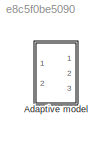
MODEL slx_e8c5f0be5090
KIND model
CONFIG AbsTol = auto
CONFIG FixedStep = auto
CONFIG MaxStep = auto
CONFIG MinStep = auto
CONFIG RelTol = 1e-3
CONFIG SampleTimeConstraint = Unconstrained
CONFIG Solver = VariableStepAuto
CONFIG SolverMode = SingleTasking
CONFIG SolverName = VariableStepAuto
CONFIG StartTime = 0.0
CONFIG StopTime = 10.0
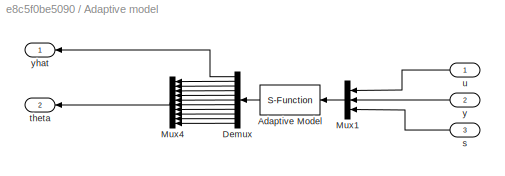
BLOCK [SubSystem] Adaptive model
  Ports = [3, 2]
  RequestExecContextInheritance = off
  Variant = off
BLOCK [S-Function] Adaptive model/Adaptive Model 
  EnableBusSupport = off
  FunctionName = aap
  Parameters = nA,nB,d
  Ports = [1, 1]
  SFunctionDeploymentMode = off
BLOCK [Demux] Adaptive model/Demux
  DisplayOption = bar
  Outputs = 11
  Ports = [1, 11]
BLOCK [Mux] Adaptive model/Mux1
  DisplayOption = bar
  Inputs = 3
  Ports = [3, 1]
BLOCK [Mux] Adaptive model/Mux4
  DisplayOption = bar
  Inputs = 10
  Ports = [10, 1]
BLOCK [Inport] Adaptive model/s
  IconDisplay = Port number
  Port = 3
BLOCK [Outport] Adaptive model/theta
  IconDisplay = Port number
  Port = 2
BLOCK [Inport] Adaptive model/u
  IconDisplay = Port number
BLOCK [Inport] Adaptive model/y
  IconDisplay = Port number
  Port = 2
BLOCK [Outport] Adaptive model/yhat
  IconDisplay = Port number
LINE Adaptive model/Adaptive Model :1 -> Adaptive model/Demux:1
LINE Adaptive model/Demux:1 -> Adaptive model/yhat:1
LINE Adaptive model/Demux:10 -> Adaptive model/Mux4:9
LINE Adaptive model/Demux:11 -> Adaptive model/Mux4:10
LINE Adaptive model/Demux:2 -> Adaptive model/Mux4:1
LINE Adaptive model/Demux:3 -> Adaptive model/Mux4:2
LINE Adaptive model/Demux:4 -> Adaptive model/Mux4:3
LINE Adaptive model/Demux:5 -> Adaptive model/Mux4:4
LINE Adaptive model/Demux:6 -> Adaptive model/Mux4:5
LINE Adaptive model/Demux:7 -> Adaptive model/Mux4:6
LINE Adaptive model/Demux:8 -> Adaptive model/Mux4:7
LINE Adaptive model/Demux:9 -> Adaptive model/Mux4:8
LINE Adaptive model/Mux1:1 -> Adaptive model/Adaptive Model :1
LINE Adaptive model/Mux4:1 -> Adaptive model/theta:1
LINE Adaptive model/s:1 -> Adaptive model/Mux1:3
LINE Adaptive model/u:1 -> Adaptive model/Mux1:1
LINE Adaptive model/y:1 -> Adaptive model/Mux1:2
